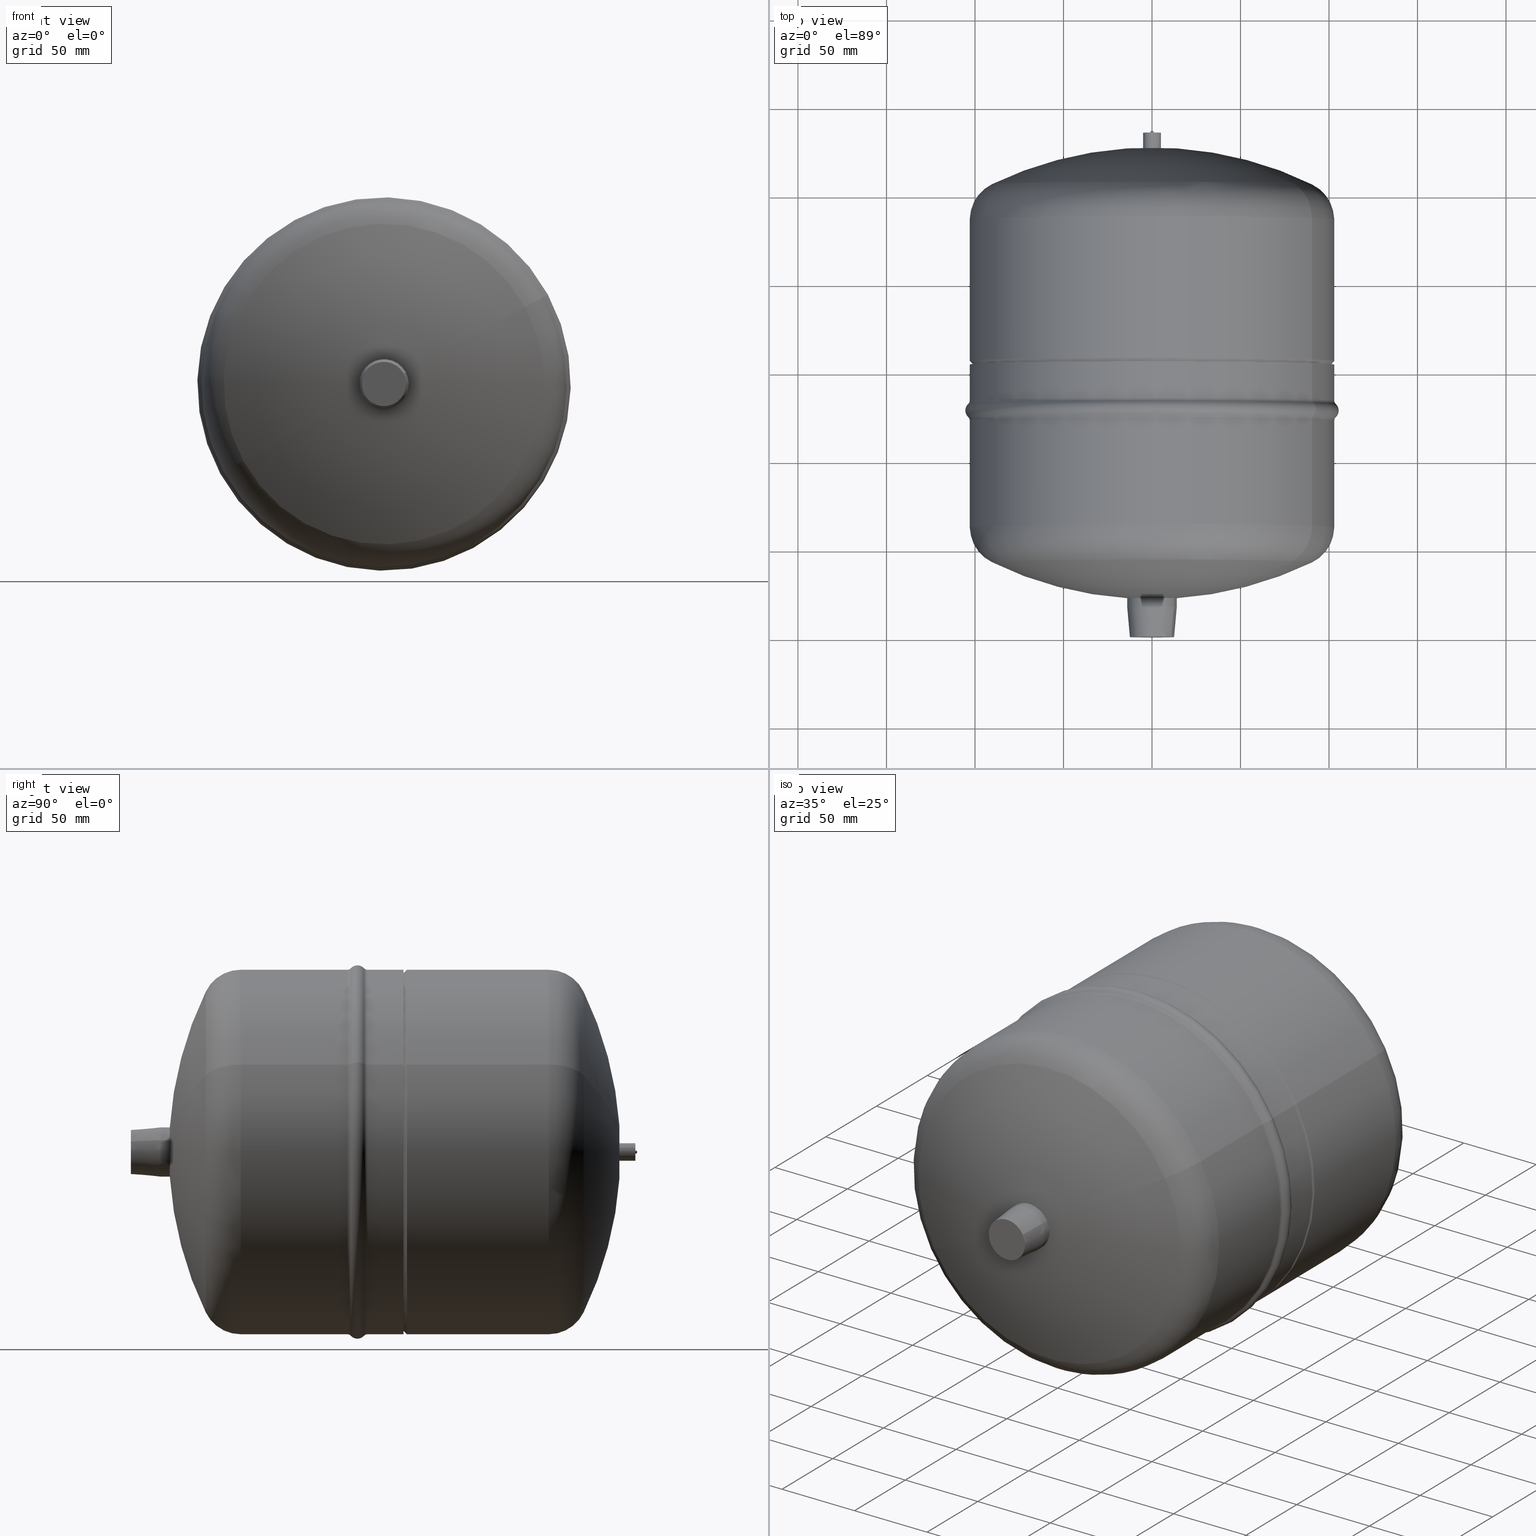
[diagram: canonical four-view strip — front | top / right | iso, engineering-drawing reading convention]
A machine part, canonical four-view strip (front | top / right | iso — engineering-drawing reading convention). The complete STEP part file that produces these views, byte-faithful:
ISO-10303-21;
HEADER;
FILE_DESCRIPTION(('CATIA V5 STEP Exchange'),'2;1');

FILE_NAME('C:\\Users\\Oberdoer.AD001\\Desktop\\reflex_NG8.stp','2012-08-09T12:25:11+00:00',('none'),('none'),'CATIA Version 5 Release 18 SP 5 (IN-10)','CATIA V5 STEP AP214','none');

FILE_SCHEMA(('AUTOMOTIVE_DESIGN { 1 0 10303 214 1 1 1 1 }'));

ENDSEC;
/* file written by CATIA V5R18 */
DATA;
#5=PRODUCT('reflex_NG8','','',(#2)) ;
#2=PRODUCT_CONTEXT(' ',#1,'mechanical') ;
#1=APPLICATION_CONTEXT('automotive design') ;
#10=PRODUCT_DEFINITION(' ',' ',#6,#3) ;
#3=PRODUCT_DEFINITION_CONTEXT('part definition',#1,' ') ;
#11=PRODUCT_DEFINITION_SHAPE(' ',' ',#10) ;
#763=MECHANICAL_DESIGN_GEOMETRIC_PRESENTATION_REPRESENTATION(' ',(#30),#17) ;
#20=SHAPE_REPRESENTATION(' ',(#19),#17) ;
#19=AXIS2_PLACEMENT_3D(' ',#18,$,$) ;
#35=AXIS2_PLACEMENT_3D('Cone Axis2P3D',#32,#33,#34) ;
#39=AXIS2_PLACEMENT_3D('Circle Axis2P3D',#37,#38,$) ;
#55=AXIS2_PLACEMENT_3D('Circle Axis2P3D',#53,#54,$) ;
#74=AXIS2_PLACEMENT_3D('Circle Axis2P3D',#72,#73,$) ;
#79=AXIS2_PLACEMENT_3D('Circle Axis2P3D',#77,#78,$) ;
#92=AXIS2_PLACEMENT_3D('Cylinder Axis2P3D',#89,#90,#91) ;
#103=AXIS2_PLACEMENT_3D('Circle Axis2P3D',#101,#102,$) ;
#122=AXIS2_PLACEMENT_3D('Circle Axis2P3D',#120,#121,$) ;
#135=AXIS2_PLACEMENT_3D('Sphere Axis2P3D',#132,#133,#134) ;
#139=AXIS2_PLACEMENT_3D('Circle Axis2P3D',#137,#138,$) ;
#146=AXIS2_PLACEMENT_3D('Circle Axis2P3D',#144,#145,$) ;
#153=AXIS2_PLACEMENT_3D('Circle Axis2P3D',#151,#152,$) ;
#165=AXIS2_PLACEMENT_3D('Circle Axis2P3D',#163,#164,$) ;
#178=AXIS2_PLACEMENT_3D('Torus Axis2P3D',#175,#176,#177) ;
#182=AXIS2_PLACEMENT_3D('Circle Axis2P3D',#180,#181,$) ;
#189=AXIS2_PLACEMENT_3D('Circle Axis2P3D',#187,#188,$) ;
#196=AXIS2_PLACEMENT_3D('Circle Axis2P3D',#194,#195,$) ;
#208=AXIS2_PLACEMENT_3D('Circle Axis2P3D',#206,#207,$) ;
#221=AXIS2_PLACEMENT_3D('Cylinder Axis2P3D',#218,#219,#220) ;
#232=AXIS2_PLACEMENT_3D('Circle Axis2P3D',#230,#231,$) ;
#251=AXIS2_PLACEMENT_3D('Circle Axis2P3D',#249,#250,$) ;
#264=AXIS2_PLACEMENT_3D('Torus Axis2P3D',#261,#262,#263) ;
#268=AXIS2_PLACEMENT_3D('Circle Axis2P3D',#266,#267,$) ;
#275=AXIS2_PLACEMENT_3D('Circle Axis2P3D',#273,#274,$) ;
#282=AXIS2_PLACEMENT_3D('Circle Axis2P3D',#280,#281,$) ;
#294=AXIS2_PLACEMENT_3D('Circle Axis2P3D',#292,#293,$) ;
#307=AXIS2_PLACEMENT_3D('Torus Axis2P3D',#304,#305,#306) ;
#311=AXIS2_PLACEMENT_3D('Circle Axis2P3D',#309,#310,$) ;
#318=AXIS2_PLACEMENT_3D('Circle Axis2P3D',#316,#317,$) ;
#325=AXIS2_PLACEMENT_3D('Circle Axis2P3D',#323,#324,$) ;
#337=AXIS2_PLACEMENT_3D('Circle Axis2P3D',#335,#336,$) ;
#350=AXIS2_PLACEMENT_3D('Torus Axis2P3D',#347,#348,#349) ;
#354=AXIS2_PLACEMENT_3D('Circle Axis2P3D',#352,#353,$) ;
#361=AXIS2_PLACEMENT_3D('Circle Axis2P3D',#359,#360,$) ;
#368=AXIS2_PLACEMENT_3D('Circle Axis2P3D',#366,#367,$) ;
#380=AXIS2_PLACEMENT_3D('Circle Axis2P3D',#378,#379,$) ;
#399=AXIS2_PLACEMENT_3D('Circle Axis2P3D',#397,#398,$) ;
#418=AXIS2_PLACEMENT_3D('Circle Axis2P3D',#416,#417,$) ;
#431=AXIS2_PLACEMENT_3D('Cone Axis2P3D',#428,#429,#430) ;
#435=AXIS2_PLACEMENT_3D('Circle Axis2P3D',#433,#434,$) ;
#451=AXIS2_PLACEMENT_3D('Circle Axis2P3D',#449,#450,$) ;
#470=AXIS2_PLACEMENT_3D('Circle Axis2P3D',#468,#469,$) ;
#475=AXIS2_PLACEMENT_3D('Circle Axis2P3D',#473,#474,$) ;
#494=AXIS2_PLACEMENT_3D('Circle Axis2P3D',#492,#493,$) ;
#513=AXIS2_PLACEMENT_3D('Circle Axis2P3D',#511,#512,$) ;
#526=AXIS2_PLACEMENT_3D('Torus Axis2P3D',#523,#524,#525) ;
#530=AXIS2_PLACEMENT_3D('Circle Axis2P3D',#528,#529,$) ;
#537=AXIS2_PLACEMENT_3D('Circle Axis2P3D',#535,#536,$) ;
#544=AXIS2_PLACEMENT_3D('Circle Axis2P3D',#542,#543,$) ;
#556=AXIS2_PLACEMENT_3D('Circle Axis2P3D',#554,#555,$) ;
#569=AXIS2_PLACEMENT_3D('Sphere Axis2P3D',#566,#567,#568) ;
#573=AXIS2_PLACEMENT_3D('Circle Axis2P3D',#571,#572,$) ;
#580=AXIS2_PLACEMENT_3D('Circle Axis2P3D',#578,#579,$) ;
#587=AXIS2_PLACEMENT_3D('Circle Axis2P3D',#585,#586,$) ;
#599=AXIS2_PLACEMENT_3D('Circle Axis2P3D',#597,#598,$) ;
#612=AXIS2_PLACEMENT_3D('Cylinder Axis2P3D',#609,#610,#611) ;
#616=AXIS2_PLACEMENT_3D('Circle Axis2P3D',#614,#615,$) ;
#632=AXIS2_PLACEMENT_3D('Circle Axis2P3D',#630,#631,$) ;
#651=AXIS2_PLACEMENT_3D('Circle Axis2P3D',#649,#650,$) ;
#656=AXIS2_PLACEMENT_3D('Circle Axis2P3D',#654,#655,$) ;
#669=AXIS2_PLACEMENT_3D('Sphere Axis2P3D',#666,#667,#668) ;
#673=AXIS2_PLACEMENT_3D('Circle Axis2P3D',#671,#672,$) ;
#682=AXIS2_PLACEMENT_3D('Circle Axis2P3D',#680,#681,$) ;
#689=AXIS2_PLACEMENT_3D('Circle Axis2P3D',#687,#688,$) ;
#700=AXIS2_PLACEMENT_3D('Circle Axis2P3D',#698,#699,$) ;
#712=AXIS2_PLACEMENT_3D('Plane Axis2P3D',#709,#710,#711) ;
#722=AXIS2_PLACEMENT_3D('Plane Axis2P3D',#719,#720,#721) ;
#736=AXIS2_PLACEMENT_3D('Plane Axis2P3D',#733,#734,#735) ;
#750=AXIS2_PLACEMENT_3D('Plane Axis2P3D',#747,#748,#749) ;
#18=CARTESIAN_POINT(' ',(0.,0.,0.)) ;
#32=CARTESIAN_POINT('Axis2P3D Location',(0.,0.,0.)) ;
#37=CARTESIAN_POINT('Axis2P3D Location',(0.,0.,0.)) ;
#41=CARTESIAN_POINT('Vertex',(10.9697820236,0.,5.99281923255)) ;
#43=CARTESIAN_POINT('Vertex',(-10.9697820236,0.,-5.99281923255)) ;
#46=CARTESIAN_POINT('Line Origine',(11.627968945,8.5,6.35238838651)) ;
#50=CARTESIAN_POINT('Vertex',(12.2861558665,17.,6.71195754046)) ;
#53=CARTESIAN_POINT('Axis2P3D Location',(0.,17.,0.)) ;
#57=CARTESIAN_POINT('Vertex',(-12.2861558665,17.,-6.71195754046)) ;
#60=CARTESIAN_POINT('Line Origine',(-11.627968945,8.5,-6.35238838651)) ;
#72=CARTESIAN_POINT('Axis2P3D Location',(0.,0.,0.)) ;
#77=CARTESIAN_POINT('Axis2P3D Location',(0.,17.,0.)) ;
#89=CARTESIAN_POINT('Axis2P3D Location',(0.,143.,0.)) ;
#94=CARTESIAN_POINT('Line Origine',(12.2861558665,19.5,6.71195754046)) ;
#98=CARTESIAN_POINT('Vertex',(12.2861558665,22.,6.71195754046)) ;
#101=CARTESIAN_POINT('Axis2P3D Location',(0.,22.,0.)) ;
#105=CARTESIAN_POINT('Vertex',(-12.2861558665,22.,-6.71195754046)) ;
#108=CARTESIAN_POINT('Line Origine',(-12.2861558665,19.5,-6.71195754046)) ;
#120=CARTESIAN_POINT('Axis2P3D Location',(0.,22.,0.)) ;
#132=CARTESIAN_POINT('Axis2P3D Location',(-2.84217094304E-014,229.528311322,0.)) ;
#137=CARTESIAN_POINT('Axis2P3D Location',(-2.84217094304E-014,229.528311322,0.)) ;
#141=CARTESIAN_POINT('Vertex',(79.4919946383,42.2874324459,43.4266745936)) ;
#144=CARTESIAN_POINT('Axis2P3D Location',(-2.84217094304E-014,42.2874324459,0.)) ;
#148=CARTESIAN_POINT('Vertex',(-79.4919946383,42.2874324459,-43.4266745936)) ;
#151=CARTESIAN_POINT('Axis2P3D Location',(-2.84217094304E-014,229.528311322,0.)) ;
#163=CARTESIAN_POINT('Axis2P3D Location',(-2.84217094304E-014,42.2874324459,0.)) ;
#175=CARTESIAN_POINT('Axis2P3D Location',(0.,62.0917561731,0.)) ;
#180=CARTESIAN_POINT('Axis2P3D Location',(71.0841875131,62.0917561731,38.8334686269)) ;
#184=CARTESIAN_POINT('Vertex',(90.3910038747,62.0917561731,49.3808304762)) ;
#187=CARTESIAN_POINT('Axis2P3D Location',(0.,62.0917561731,0.)) ;
#191=CARTESIAN_POINT('Vertex',(-90.3910038747,62.0917561731,-49.3808304762)) ;
#194=CARTESIAN_POINT('Axis2P3D Location',(-71.0841875131,62.0917561731,-38.8334686269)) ;
#206=CARTESIAN_POINT('Axis2P3D Location',(0.,62.0917561731,0.)) ;
#218=CARTESIAN_POINT('Axis2P3D Location',(0.,143.,0.)) ;
#223=CARTESIAN_POINT('Line Origine',(90.3910038747,149.034940875,49.3808304762)) ;
#227=CARTESIAN_POINT('Vertex',(90.3910038747,122.409830056,49.3808304762)) ;
#230=CARTESIAN_POINT('Axis2P3D Location',(0.,122.409830056,0.)) ;
#234=CARTESIAN_POINT('Vertex',(-90.3910038747,122.409830056,-49.3808304762)) ;
#237=CARTESIAN_POINT('Line Origine',(-90.3910038747,149.034940875,-49.3808304762)) ;
#249=CARTESIAN_POINT('Axis2P3D Location',(0.,122.409830056,0.)) ;
#261=CARTESIAN_POINT('Axis2P3D Location',(0.,122.409830056,0.)) ;
#266=CARTESIAN_POINT('Axis2P3D Location',(92.5849602794,122.409830056,50.5793943227)) ;
#270=CARTESIAN_POINT('Vertex',(91.1223226763,124.273220038,49.7803517584)) ;
#273=CARTESIAN_POINT('Axis2P3D Location',(0.,124.273220038,0.)) ;
#277=CARTESIAN_POINT('Vertex',(-91.1223226763,124.273220038,-49.7803517584)) ;
#280=CARTESIAN_POINT('Axis2P3D Location',(-92.5849602794,122.409830056,-50.5793943227)) ;
#292=CARTESIAN_POINT('Axis2P3D Location',(0.,124.273220038,0.)) ;
#304=CARTESIAN_POINT('Axis2P3D Location',(0.,128.,0.)) ;
#309=CARTESIAN_POINT('Axis2P3D Location',(88.19704747,128.,48.1822666297)) ;
#313=CARTESIAN_POINT('Vertex',(91.1223226763,131.726779962,49.7803517584)) ;
#316=CARTESIAN_POINT('Axis2P3D Location',(0.,131.726779962,0.)) ;
#320=CARTESIAN_POINT('Vertex',(-91.1223226763,131.726779962,-49.7803517584)) ;
#323=CARTESIAN_POINT('Axis2P3D Location',(-88.19704747,128.,-48.1822666297)) ;
#335=CARTESIAN_POINT('Axis2P3D Location',(0.,131.726779962,0.)) ;
#347=CARTESIAN_POINT('Axis2P3D Location',(0.,133.590169944,0.)) ;
#352=CARTESIAN_POINT('Axis2P3D Location',(92.5849602794,133.590169944,50.5793943227)) ;
#356=CARTESIAN_POINT('Vertex',(90.3910038747,133.590169944,49.3808304762)) ;
#359=CARTESIAN_POINT('Axis2P3D Location',(0.,133.590169944,0.)) ;
#363=CARTESIAN_POINT('Vertex',(-90.3910038747,133.590169944,-49.3808304762)) ;
#366=CARTESIAN_POINT('Axis2P3D Location',(-92.5849602794,133.590169944,-50.5793943227)) ;
#378=CARTESIAN_POINT('Axis2P3D Location',(0.,133.590169944,0.)) ;
#390=CARTESIAN_POINT('Line Origine',(90.3910038747,149.034940875,49.3808304762)) ;
#394=CARTESIAN_POINT('Vertex',(90.3910038747,154.,49.3808304762)) ;
#397=CARTESIAN_POINT('Axis2P3D Location',(0.,154.,0.)) ;
#401=CARTESIAN_POINT('Vertex',(-90.3910038747,154.,-49.3808304762)) ;
#404=CARTESIAN_POINT('Line Origine',(-90.3910038747,149.034940875,-49.3808304762)) ;
#416=CARTESIAN_POINT('Axis2P3D Location',(0.,154.,0.)) ;
#428=CARTESIAN_POINT('Axis2P3D Location',(0.,154.,0.)) ;
#433=CARTESIAN_POINT('Axis2P3D Location',(0.,154.,0.)) ;
#437=CARTESIAN_POINT('Vertex',(88.6358387509,154.,48.421979399)) ;
#439=CARTESIAN_POINT('Vertex',(-88.6358387509,154.,-48.421979399)) ;
#442=CARTESIAN_POINT('Line Origine',(89.5134213128,155.,48.9014049376)) ;
#446=CARTESIAN_POINT('Vertex',(90.3910038747,156.,49.3808304762)) ;
#449=CARTESIAN_POINT('Axis2P3D Location',(0.,156.,0.)) ;
#453=CARTESIAN_POINT('Vertex',(-90.3910038747,156.,-49.3808304762)) ;
#456=CARTESIAN_POINT('Line Origine',(-89.5134213128,155.,-48.9014049376)) ;
#468=CARTESIAN_POINT('Axis2P3D Location',(0.,154.,0.)) ;
#473=CARTESIAN_POINT('Axis2P3D Location',(0.,156.,0.)) ;
#485=CARTESIAN_POINT('Line Origine',(90.3910038747,149.034940875,49.3808304762)) ;
#489=CARTESIAN_POINT('Vertex',(90.3910038747,235.978125578,49.3808304762)) ;
#492=CARTESIAN_POINT('Axis2P3D Location',(0.,235.978125578,0.)) ;
#496=CARTESIAN_POINT('Vertex',(-90.3910038747,235.978125578,-49.3808304762)) ;
#499=CARTESIAN_POINT('Line Origine',(-90.3910038747,149.034940875,-49.3808304762)) ;
#511=CARTESIAN_POINT('Axis2P3D Location',(0.,235.978125578,0.)) ;
#523=CARTESIAN_POINT('Axis2P3D Location',(0.,235.978125578,0.)) ;
#528=CARTESIAN_POINT('Axis2P3D Location',(71.0841875131,235.978125578,38.8334686269)) ;
#532=CARTESIAN_POINT('Vertex',(79.4919946383,255.782449305,43.4266745936)) ;
#535=CARTESIAN_POINT('Axis2P3D Location',(0.,255.782449305,0.)) ;
#539=CARTESIAN_POINT('Vertex',(-79.4919946383,255.782449305,-43.4266745936)) ;
#542=CARTESIAN_POINT('Axis2P3D Location',(-71.0841875131,235.978125578,-38.8334686269)) ;
#554=CARTESIAN_POINT('Axis2P3D Location',(0.,255.782449305,0.)) ;
#566=CARTESIAN_POINT('Axis2P3D Location',(-7.1054273576E-015,68.5415704292,0.)) ;
#571=CARTESIAN_POINT('Axis2P3D Location',(-7.1054273576E-015,68.5415704292,0.)) ;
#575=CARTESIAN_POINT('Vertex',(13.1637384284,276.,7.19138307906)) ;
#578=CARTESIAN_POINT('Axis2P3D Location',(-7.1054273576E-015,276.,0.)) ;
#582=CARTESIAN_POINT('Vertex',(-13.1637384284,276.,-7.19138307906)) ;
#585=CARTESIAN_POINT('Axis2P3D Location',(-7.1054273576E-015,68.5415704292,0.)) ;
#597=CARTESIAN_POINT('Axis2P3D Location',(-7.1054273576E-015,276.,0.)) ;
#609=CARTESIAN_POINT('Axis2P3D Location',(0.,143.,0.)) ;
#614=CARTESIAN_POINT('Axis2P3D Location',(0.,276.,0.)) ;
#618=CARTESIAN_POINT('Vertex',(4.38791280945,276.,2.39712769302)) ;
#620=CARTESIAN_POINT('Vertex',(-4.38791280945,276.,-2.39712769302)) ;
#623=CARTESIAN_POINT('Line Origine',(4.38791280945,280.5,2.39712769302)) ;
#627=CARTESIAN_POINT('Vertex',(4.38791280945,285.,2.39712769302)) ;
#630=CARTESIAN_POINT('Axis2P3D Location',(0.,285.,0.)) ;
#634=CARTESIAN_POINT('Vertex',(-4.38791280945,285.,-2.39712769302)) ;
#637=CARTESIAN_POINT('Line Origine',(-4.38791280945,280.5,-2.39712769302)) ;
#649=CARTESIAN_POINT('Axis2P3D Location',(0.,276.,0.)) ;
#654=CARTESIAN_POINT('Axis2P3D Location',(0.,285.,0.)) ;
#666=CARTESIAN_POINT('Axis2P3D Location',(-3.49024337757E-014,285.,0.)) ;
#671=CARTESIAN_POINT('Axis2P3D Location',(-3.49024337757E-014,285.,0.)) ;
#675=CARTESIAN_POINT('Vertex',(0.87758256189,285.,0.479425538604)) ;
#677=CARTESIAN_POINT('Vertex',(-0.87758256189,285.,-0.479425538604)) ;
#680=CARTESIAN_POINT('Axis2P3D Location',(-3.49024337757E-014,285.,0.)) ;
#684=CARTESIAN_POINT('Vertex',(-3.48486973419E-014,286.,2.93563475641E-017)) ;
#687=CARTESIAN_POINT('Axis2P3D Location',(-3.49024337757E-014,285.,0.)) ;
#698=CARTESIAN_POINT('Axis2P3D Location',(-3.49024337757E-014,285.,0.)) ;
#709=CARTESIAN_POINT('Axis2P3D Location',(12.5,0.,0.)) ;
#719=CARTESIAN_POINT('Axis2P3D Location',(103.,154.,0.)) ;
#733=CARTESIAN_POINT('Axis2P3D Location',(15.,276.,0.)) ;
#747=CARTESIAN_POINT('Axis2P3D Location',(5.00000000001,285.,0.)) ;
#33=DIRECTION('Axis2P3D Direction',(-0.,1.,-0.)) ;
#34=DIRECTION('Axis2P3D XDirection',(0.87758256189,0.,0.479425538604)) ;
#38=DIRECTION('Axis2P3D Direction',(0.,1.,-0.)) ;
#47=DIRECTION('Vector Direction',(0.0771340752142,0.996129850025,0.0421385373413)) ;
#54=DIRECTION('Axis2P3D Direction',(0.,1.,-0.)) ;
#61=DIRECTION('Vector Direction',(-0.0771340752142,0.996129850025,-0.0421385373413)) ;
#73=DIRECTION('Axis2P3D Direction',(0.,1.,-0.)) ;
#78=DIRECTION('Axis2P3D Direction',(0.,1.,-0.)) ;
#90=DIRECTION('Axis2P3D Direction',(0.,-1.,0.)) ;
#91=DIRECTION('Axis2P3D XDirection',(0.87758256189,0.,0.479425538604)) ;
#95=DIRECTION('Vector Direction',(0.,-1.,0.)) ;
#102=DIRECTION('Axis2P3D Direction',(0.,-1.,0.)) ;
#109=DIRECTION('Vector Direction',(0.,-1.,0.)) ;
#121=DIRECTION('Axis2P3D Direction',(0.,-1.,0.)) ;
#133=DIRECTION('Axis2P3D Direction',(0.,-1.,0.)) ;
#134=DIRECTION('Axis2P3D XDirection',(0.87758256189,0.,0.479425538604)) ;
#138=DIRECTION('Axis2P3D Direction',(0.479425538604,0.,-0.87758256189)) ;
#145=DIRECTION('Axis2P3D Direction',(0.,-1.,0.)) ;
#152=DIRECTION('Axis2P3D Direction',(-0.479425538604,0.,0.87758256189)) ;
#164=DIRECTION('Axis2P3D Direction',(0.,-1.,0.)) ;
#176=DIRECTION('Axis2P3D Direction',(0.,-1.,0.)) ;
#177=DIRECTION('Axis2P3D XDirection',(0.87758256189,0.,0.479425538604)) ;
#181=DIRECTION('Axis2P3D Direction',(0.479425538604,0.,-0.87758256189)) ;
#188=DIRECTION('Axis2P3D Direction',(0.,-1.,0.)) ;
#195=DIRECTION('Axis2P3D Direction',(-0.479425538604,0.,0.87758256189)) ;
#207=DIRECTION('Axis2P3D Direction',(0.,-1.,0.)) ;
#219=DIRECTION('Axis2P3D Direction',(0.,-1.,0.)) ;
#220=DIRECTION('Axis2P3D XDirection',(0.87758256189,0.,0.479425538604)) ;
#224=DIRECTION('Vector Direction',(0.,-1.,0.)) ;
#231=DIRECTION('Axis2P3D Direction',(0.,-1.,0.)) ;
#238=DIRECTION('Vector Direction',(0.,-1.,0.)) ;
#250=DIRECTION('Axis2P3D Direction',(0.,-1.,0.)) ;
#262=DIRECTION('Axis2P3D Direction',(0.,-1.,0.)) ;
#263=DIRECTION('Axis2P3D XDirection',(0.87758256189,0.,0.479425538604)) ;
#267=DIRECTION('Axis2P3D Direction',(0.479425538604,0.,-0.87758256189)) ;
#274=DIRECTION('Axis2P3D Direction',(0.,-1.,0.)) ;
#281=DIRECTION('Axis2P3D Direction',(-0.479425538604,0.,0.87758256189)) ;
#293=DIRECTION('Axis2P3D Direction',(0.,-1.,0.)) ;
#305=DIRECTION('Axis2P3D Direction',(0.,-1.,0.)) ;
#306=DIRECTION('Axis2P3D XDirection',(0.87758256189,0.,0.479425538604)) ;
#310=DIRECTION('Axis2P3D Direction',(0.479425538604,0.,-0.87758256189)) ;
#317=DIRECTION('Axis2P3D Direction',(0.,-1.,0.)) ;
#324=DIRECTION('Axis2P3D Direction',(-0.479425538604,0.,0.87758256189)) ;
#336=DIRECTION('Axis2P3D Direction',(0.,-1.,0.)) ;
#348=DIRECTION('Axis2P3D Direction',(0.,-1.,0.)) ;
#349=DIRECTION('Axis2P3D XDirection',(0.87758256189,0.,0.479425538604)) ;
#353=DIRECTION('Axis2P3D Direction',(0.479425538604,0.,-0.87758256189)) ;
#360=DIRECTION('Axis2P3D Direction',(0.,-1.,0.)) ;
#367=DIRECTION('Axis2P3D Direction',(-0.479425538604,0.,0.87758256189)) ;
#379=DIRECTION('Axis2P3D Direction',(0.,-1.,0.)) ;
#391=DIRECTION('Vector Direction',(0.,-1.,0.)) ;
#398=DIRECTION('Axis2P3D Direction',(0.,-1.,0.)) ;
#405=DIRECTION('Vector Direction',(0.,-1.,0.)) ;
#417=DIRECTION('Axis2P3D Direction',(0.,-1.,0.)) ;
#429=DIRECTION('Axis2P3D Direction',(-0.,1.,-0.)) ;
#430=DIRECTION('Axis2P3D XDirection',(0.87758256189,0.,0.479425538604)) ;
#434=DIRECTION('Axis2P3D Direction',(0.,1.,-0.)) ;
#443=DIRECTION('Vector Direction',(0.620544580564,0.707106781187,0.339005049421)) ;
#450=DIRECTION('Axis2P3D Direction',(0.,1.,-0.)) ;
#457=DIRECTION('Vector Direction',(-0.620544580564,0.707106781187,-0.339005049421)) ;
#469=DIRECTION('Axis2P3D Direction',(0.,1.,-0.)) ;
#474=DIRECTION('Axis2P3D Direction',(0.,1.,-0.)) ;
#486=DIRECTION('Vector Direction',(0.,-1.,0.)) ;
#493=DIRECTION('Axis2P3D Direction',(0.,-1.,0.)) ;
#500=DIRECTION('Vector Direction',(0.,-1.,0.)) ;
#512=DIRECTION('Axis2P3D Direction',(0.,-1.,0.)) ;
#524=DIRECTION('Axis2P3D Direction',(0.,-1.,0.)) ;
#525=DIRECTION('Axis2P3D XDirection',(0.87758256189,0.,0.479425538604)) ;
#529=DIRECTION('Axis2P3D Direction',(0.479425538604,0.,-0.87758256189)) ;
#536=DIRECTION('Axis2P3D Direction',(0.,-1.,0.)) ;
#543=DIRECTION('Axis2P3D Direction',(-0.479425538604,0.,0.87758256189)) ;
#555=DIRECTION('Axis2P3D Direction',(0.,-1.,0.)) ;
#567=DIRECTION('Axis2P3D Direction',(0.,-1.,0.)) ;
#568=DIRECTION('Axis2P3D XDirection',(0.87758256189,0.,0.479425538604)) ;
#572=DIRECTION('Axis2P3D Direction',(0.479425538604,0.,-0.87758256189)) ;
#579=DIRECTION('Axis2P3D Direction',(0.,-1.,0.)) ;
#586=DIRECTION('Axis2P3D Direction',(-0.479425538604,0.,0.87758256189)) ;
#598=DIRECTION('Axis2P3D Direction',(0.,-1.,0.)) ;
#610=DIRECTION('Axis2P3D Direction',(0.,-1.,0.)) ;
#611=DIRECTION('Axis2P3D XDirection',(0.87758256189,0.,0.479425538604)) ;
#615=DIRECTION('Axis2P3D Direction',(0.,-1.,0.)) ;
#624=DIRECTION('Vector Direction',(0.,-1.,0.)) ;
#631=DIRECTION('Axis2P3D Direction',(0.,-1.,0.)) ;
#638=DIRECTION('Vector Direction',(0.,-1.,0.)) ;
#650=DIRECTION('Axis2P3D Direction',(0.,-1.,0.)) ;
#655=DIRECTION('Axis2P3D Direction',(0.,-1.,0.)) ;
#667=DIRECTION('Axis2P3D Direction',(0.,-1.,0.)) ;
#668=DIRECTION('Axis2P3D XDirection',(0.87758256189,0.,0.479425538604)) ;
#672=DIRECTION('Axis2P3D Direction',(0.,-1.,0.)) ;
#681=DIRECTION('Axis2P3D Direction',(0.479425538604,0.,-0.87758256189)) ;
#688=DIRECTION('Axis2P3D Direction',(-0.479425538604,0.,0.87758256189)) ;
#699=DIRECTION('Axis2P3D Direction',(0.,-1.,0.)) ;
#710=DIRECTION('Axis2P3D Direction',(0.,-1.,0.)) ;
#711=DIRECTION('Axis2P3D XDirection',(1.,0.,0.)) ;
#720=DIRECTION('Axis2P3D Direction',(0.,-1.,0.)) ;
#721=DIRECTION('Axis2P3D XDirection',(1.,0.,0.)) ;
#734=DIRECTION('Axis2P3D Direction',(0.,-1.,0.)) ;
#735=DIRECTION('Axis2P3D XDirection',(1.,0.,0.)) ;
#748=DIRECTION('Axis2P3D Direction',(0.,-1.,0.)) ;
#749=DIRECTION('Axis2P3D XDirection',(1.,0.,0.)) ;
#8=PRODUCT_RELATED_PRODUCT_CATEGORY('part',$,(#5)) ;
#7=PRODUCT_CATEGORY('part','specification') ;
#30=STYLED_ITEM(' ',(#29),#22) ;
#29=PRESENTATION_STYLE_ASSIGNMENT((#28)) ;
#28=SURFACE_STYLE_USAGE(.BOTH.,#27) ;
#27=SURFACE_SIDE_STYLE(' ',(#26)) ;
#26=SURFACE_STYLE_FILL_AREA(#25) ;
#25=FILL_AREA_STYLE(' ',(#24)) ;
#24=FILL_AREA_STYLE_COLOUR(' ',#23) ;
#48=VECTOR('Line Direction',#47,1.) ;
#62=VECTOR('Line Direction',#61,1.) ;
#96=VECTOR('Line Direction',#95,1.) ;
#110=VECTOR('Line Direction',#109,1.) ;
#225=VECTOR('Line Direction',#224,1.) ;
#239=VECTOR('Line Direction',#238,1.) ;
#392=VECTOR('Line Direction',#391,1.) ;
#406=VECTOR('Line Direction',#405,1.) ;
#444=VECTOR('Line Direction',#443,1.) ;
#458=VECTOR('Line Direction',#457,1.) ;
#487=VECTOR('Line Direction',#486,1.) ;
#501=VECTOR('Line Direction',#500,1.) ;
#625=VECTOR('Line Direction',#624,1.) ;
#639=VECTOR('Line Direction',#638,1.) ;
#16=UNCERTAINTY_MEASURE_WITH_UNIT(LENGTH_MEASURE(0.005),#12,'distance_accuracy_value','CONFUSED CURVE UNCERTAINTY') ;
#762=SHAPE_REPRESENTATION_RELATIONSHIP(' ',' ',#20,#761) ;
#66=ORIENTED_EDGE('',*,*,#45,.F.) ;
#67=ORIENTED_EDGE('',*,*,#52,.T.) ;
#68=ORIENTED_EDGE('',*,*,#59,.T.) ;
#69=ORIENTED_EDGE('',*,*,#64,.F.) ;
#83=ORIENTED_EDGE('',*,*,#76,.F.) ;
#84=ORIENTED_EDGE('',*,*,#64,.T.) ;
#85=ORIENTED_EDGE('',*,*,#81,.T.) ;
#86=ORIENTED_EDGE('',*,*,#52,.F.) ;
#114=ORIENTED_EDGE('',*,*,#59,.F.) ;
#115=ORIENTED_EDGE('',*,*,#100,.T.) ;
#116=ORIENTED_EDGE('',*,*,#107,.T.) ;
#117=ORIENTED_EDGE('',*,*,#112,.F.) ;
#126=ORIENTED_EDGE('',*,*,#81,.F.) ;
#127=ORIENTED_EDGE('',*,*,#112,.T.) ;
#128=ORIENTED_EDGE('',*,*,#124,.T.) ;
#129=ORIENTED_EDGE('',*,*,#100,.F.) ;
#157=ORIENTED_EDGE('',*,*,#107,.F.) ;
#158=ORIENTED_EDGE('',*,*,#143,.T.) ;
#159=ORIENTED_EDGE('',*,*,#150,.T.) ;
#160=ORIENTED_EDGE('',*,*,#155,.F.) ;
#169=ORIENTED_EDGE('',*,*,#124,.F.) ;
#170=ORIENTED_EDGE('',*,*,#155,.T.) ;
#171=ORIENTED_EDGE('',*,*,#167,.T.) ;
#172=ORIENTED_EDGE('',*,*,#143,.F.) ;
#200=ORIENTED_EDGE('',*,*,#150,.F.) ;
#201=ORIENTED_EDGE('',*,*,#186,.T.) ;
#202=ORIENTED_EDGE('',*,*,#193,.T.) ;
#203=ORIENTED_EDGE('',*,*,#198,.F.) ;
#212=ORIENTED_EDGE('',*,*,#167,.F.) ;
#213=ORIENTED_EDGE('',*,*,#198,.T.) ;
#214=ORIENTED_EDGE('',*,*,#210,.T.) ;
#215=ORIENTED_EDGE('',*,*,#186,.F.) ;
#243=ORIENTED_EDGE('',*,*,#193,.F.) ;
#244=ORIENTED_EDGE('',*,*,#229,.T.) ;
#245=ORIENTED_EDGE('',*,*,#236,.T.) ;
#246=ORIENTED_EDGE('',*,*,#241,.F.) ;
#255=ORIENTED_EDGE('',*,*,#210,.F.) ;
#256=ORIENTED_EDGE('',*,*,#241,.T.) ;
#257=ORIENTED_EDGE('',*,*,#253,.T.) ;
#258=ORIENTED_EDGE('',*,*,#229,.F.) ;
#286=ORIENTED_EDGE('',*,*,#236,.F.) ;
#287=ORIENTED_EDGE('',*,*,#272,.T.) ;
#288=ORIENTED_EDGE('',*,*,#279,.T.) ;
#289=ORIENTED_EDGE('',*,*,#284,.F.) ;
#298=ORIENTED_EDGE('',*,*,#253,.F.) ;
#299=ORIENTED_EDGE('',*,*,#284,.T.) ;
#300=ORIENTED_EDGE('',*,*,#296,.T.) ;
#301=ORIENTED_EDGE('',*,*,#272,.F.) ;
#329=ORIENTED_EDGE('',*,*,#279,.F.) ;
#330=ORIENTED_EDGE('',*,*,#315,.T.) ;
#331=ORIENTED_EDGE('',*,*,#322,.T.) ;
#332=ORIENTED_EDGE('',*,*,#327,.F.) ;
#341=ORIENTED_EDGE('',*,*,#296,.F.) ;
#342=ORIENTED_EDGE('',*,*,#327,.T.) ;
#343=ORIENTED_EDGE('',*,*,#339,.T.) ;
#344=ORIENTED_EDGE('',*,*,#315,.F.) ;
#372=ORIENTED_EDGE('',*,*,#322,.F.) ;
#373=ORIENTED_EDGE('',*,*,#358,.T.) ;
#374=ORIENTED_EDGE('',*,*,#365,.T.) ;
#375=ORIENTED_EDGE('',*,*,#370,.F.) ;
#384=ORIENTED_EDGE('',*,*,#339,.F.) ;
#385=ORIENTED_EDGE('',*,*,#370,.T.) ;
#386=ORIENTED_EDGE('',*,*,#382,.T.) ;
#387=ORIENTED_EDGE('',*,*,#358,.F.) ;
#410=ORIENTED_EDGE('',*,*,#365,.F.) ;
#411=ORIENTED_EDGE('',*,*,#396,.T.) ;
#412=ORIENTED_EDGE('',*,*,#403,.T.) ;
#413=ORIENTED_EDGE('',*,*,#408,.F.) ;
#422=ORIENTED_EDGE('',*,*,#382,.F.) ;
#423=ORIENTED_EDGE('',*,*,#408,.T.) ;
#424=ORIENTED_EDGE('',*,*,#420,.T.) ;
#425=ORIENTED_EDGE('',*,*,#396,.F.) ;
#462=ORIENTED_EDGE('',*,*,#441,.F.) ;
#463=ORIENTED_EDGE('',*,*,#448,.T.) ;
#464=ORIENTED_EDGE('',*,*,#455,.T.) ;
#465=ORIENTED_EDGE('',*,*,#460,.F.) ;
#479=ORIENTED_EDGE('',*,*,#472,.F.) ;
#480=ORIENTED_EDGE('',*,*,#460,.T.) ;
#481=ORIENTED_EDGE('',*,*,#477,.T.) ;
#482=ORIENTED_EDGE('',*,*,#448,.F.) ;
#505=ORIENTED_EDGE('',*,*,#455,.F.) ;
#506=ORIENTED_EDGE('',*,*,#491,.T.) ;
#507=ORIENTED_EDGE('',*,*,#498,.T.) ;
#508=ORIENTED_EDGE('',*,*,#503,.F.) ;
#517=ORIENTED_EDGE('',*,*,#477,.F.) ;
#518=ORIENTED_EDGE('',*,*,#503,.T.) ;
#519=ORIENTED_EDGE('',*,*,#515,.T.) ;
#520=ORIENTED_EDGE('',*,*,#491,.F.) ;
#548=ORIENTED_EDGE('',*,*,#498,.F.) ;
#549=ORIENTED_EDGE('',*,*,#534,.T.) ;
#550=ORIENTED_EDGE('',*,*,#541,.T.) ;
#551=ORIENTED_EDGE('',*,*,#546,.F.) ;
#560=ORIENTED_EDGE('',*,*,#515,.F.) ;
#561=ORIENTED_EDGE('',*,*,#546,.T.) ;
#562=ORIENTED_EDGE('',*,*,#558,.T.) ;
#563=ORIENTED_EDGE('',*,*,#534,.F.) ;
#591=ORIENTED_EDGE('',*,*,#541,.F.) ;
#592=ORIENTED_EDGE('',*,*,#577,.T.) ;
#593=ORIENTED_EDGE('',*,*,#584,.T.) ;
#594=ORIENTED_EDGE('',*,*,#589,.F.) ;
#603=ORIENTED_EDGE('',*,*,#558,.F.) ;
#604=ORIENTED_EDGE('',*,*,#589,.T.) ;
#605=ORIENTED_EDGE('',*,*,#601,.T.) ;
#606=ORIENTED_EDGE('',*,*,#577,.F.) ;
#643=ORIENTED_EDGE('',*,*,#622,.F.) ;
#644=ORIENTED_EDGE('',*,*,#629,.T.) ;
#645=ORIENTED_EDGE('',*,*,#636,.T.) ;
#646=ORIENTED_EDGE('',*,*,#641,.F.) ;
#660=ORIENTED_EDGE('',*,*,#653,.F.) ;
#661=ORIENTED_EDGE('',*,*,#641,.T.) ;
#662=ORIENTED_EDGE('',*,*,#658,.T.) ;
#663=ORIENTED_EDGE('',*,*,#629,.F.) ;
#693=ORIENTED_EDGE('',*,*,#679,.F.) ;
#694=ORIENTED_EDGE('',*,*,#686,.T.) ;
#695=ORIENTED_EDGE('',*,*,#691,.F.) ;
#704=ORIENTED_EDGE('',*,*,#702,.F.) ;
#705=ORIENTED_EDGE('',*,*,#691,.T.) ;
#706=ORIENTED_EDGE('',*,*,#686,.F.) ;
#715=ORIENTED_EDGE('',*,*,#45,.T.) ;
#716=ORIENTED_EDGE('',*,*,#76,.T.) ;
#725=ORIENTED_EDGE('',*,*,#403,.F.) ;
#726=ORIENTED_EDGE('',*,*,#420,.F.) ;
#729=ORIENTED_EDGE('',*,*,#472,.T.) ;
#730=ORIENTED_EDGE('',*,*,#441,.T.) ;
#739=ORIENTED_EDGE('',*,*,#584,.F.) ;
#740=ORIENTED_EDGE('',*,*,#601,.F.) ;
#743=ORIENTED_EDGE('',*,*,#653,.T.) ;
#744=ORIENTED_EDGE('',*,*,#622,.T.) ;
#753=ORIENTED_EDGE('',*,*,#636,.F.) ;
#754=ORIENTED_EDGE('',*,*,#658,.F.) ;
#757=ORIENTED_EDGE('',*,*,#702,.T.) ;
#758=ORIENTED_EDGE('',*,*,#679,.T.) ;
#731=FACE_BOUND('',#728,.T.) ;
#745=FACE_BOUND('',#742,.T.) ;
#759=FACE_BOUND('',#756,.T.) ;
#31=CLOSED_SHELL('Closed Shell',(#71,#88,#119,#131,#162,#174,#205,#217,#248,#260,#291,#303,#334,#346,#377,#389,#415,#427,#467,#484,#510,#522,#553,#565,#596,#608,#648,#665,#697,#708,#718,#732,#746,#760)) ;
#761=ADVANCED_BREP_SHAPE_REPRESENTATION('NONE',(#22),#17) ;
#71=ADVANCED_FACE('Hauptk\X2\00F6\X0\rper',(#70),#36,.T.) ;
#88=ADVANCED_FACE('Hauptk\X2\00F6\X0\rper',(#87),#36,.T.) ;
#119=ADVANCED_FACE('Hauptk\X2\00F6\X0\rper',(#118),#93,.T.) ;
#131=ADVANCED_FACE('Hauptk\X2\00F6\X0\rper',(#130),#93,.T.) ;
#162=ADVANCED_FACE('Hauptk\X2\00F6\X0\rper',(#161),#136,.T.) ;
#174=ADVANCED_FACE('Hauptk\X2\00F6\X0\rper',(#173),#136,.T.) ;
#205=ADVANCED_FACE('Hauptk\X2\00F6\X0\rper',(#204),#179,.T.) ;
#217=ADVANCED_FACE('Hauptk\X2\00F6\X0\rper',(#216),#179,.T.) ;
#248=ADVANCED_FACE('Hauptk\X2\00F6\X0\rper',(#247),#222,.T.) ;
#260=ADVANCED_FACE('Hauptk\X2\00F6\X0\rper',(#259),#222,.T.) ;
#291=ADVANCED_FACE('Hauptk\X2\00F6\X0\rper',(#290),#265,.F.) ;
#303=ADVANCED_FACE('Hauptk\X2\00F6\X0\rper',(#302),#265,.F.) ;
#334=ADVANCED_FACE('Hauptk\X2\00F6\X0\rper',(#333),#308,.T.) ;
#346=ADVANCED_FACE('Hauptk\X2\00F6\X0\rper',(#345),#308,.T.) ;
#377=ADVANCED_FACE('Hauptk\X2\00F6\X0\rper',(#376),#351,.F.) ;
#389=ADVANCED_FACE('Hauptk\X2\00F6\X0\rper',(#388),#351,.F.) ;
#415=ADVANCED_FACE('Hauptk\X2\00F6\X0\rper',(#414),#222,.T.) ;
#427=ADVANCED_FACE('Hauptk\X2\00F6\X0\rper',(#426),#222,.T.) ;
#467=ADVANCED_FACE('Hauptk\X2\00F6\X0\rper',(#466),#432,.T.) ;
#484=ADVANCED_FACE('Hauptk\X2\00F6\X0\rper',(#483),#432,.T.) ;
#510=ADVANCED_FACE('Hauptk\X2\00F6\X0\rper',(#509),#222,.T.) ;
#522=ADVANCED_FACE('Hauptk\X2\00F6\X0\rper',(#521),#222,.T.) ;
#553=ADVANCED_FACE('Hauptk\X2\00F6\X0\rper',(#552),#527,.T.) ;
#565=ADVANCED_FACE('Hauptk\X2\00F6\X0\rper',(#564),#527,.T.) ;
#596=ADVANCED_FACE('Hauptk\X2\00F6\X0\rper',(#595),#570,.T.) ;
#608=ADVANCED_FACE('Hauptk\X2\00F6\X0\rper',(#607),#570,.T.) ;
#648=ADVANCED_FACE('Hauptk\X2\00F6\X0\rper',(#647),#613,.T.) ;
#665=ADVANCED_FACE('Hauptk\X2\00F6\X0\rper',(#664),#613,.T.) ;
#697=ADVANCED_FACE('Hauptk\X2\00F6\X0\rper',(#696),#670,.T.) ;
#708=ADVANCED_FACE('Hauptk\X2\00F6\X0\rper',(#707),#670,.T.) ;
#718=ADVANCED_FACE('Hauptk\X2\00F6\X0\rper',(#717),#713,.T.) ;
#732=ADVANCED_FACE('Hauptk\X2\00F6\X0\rper',(#727,#731),#723,.F.) ;
#746=ADVANCED_FACE('Hauptk\X2\00F6\X0\rper',(#741,#745),#737,.F.) ;
#760=ADVANCED_FACE('Hauptk\X2\00F6\X0\rper',(#755,#759),#751,.F.) ;
#4=APPLICATION_PROTOCOL_DEFINITION('international standard','automotive_design',2001,#1) ;
#22=MANIFOLD_SOLID_BREP('Hauptk\X2\00F6\X0\rper',#31) ;
#40=CIRCLE('generated circle',#39,12.5) ;
#56=CIRCLE('generated circle',#55,14.) ;
#75=CIRCLE('generated circle',#74,12.5) ;
#80=CIRCLE('generated circle',#79,14.) ;
#104=CIRCLE('generated circle',#103,14.) ;
#123=CIRCLE('generated circle',#122,14.) ;
#140=CIRCLE('generated circle',#139,208.) ;
#147=CIRCLE('generated circle',#146,90.5806451613) ;
#154=CIRCLE('generated circle',#153,208.) ;
#166=CIRCLE('generated circle',#165,90.5806451613) ;
#183=CIRCLE('generated circle',#182,22.) ;
#190=CIRCLE('generated circle',#189,103.) ;
#197=CIRCLE('generated circle',#196,22.) ;
#209=CIRCLE('generated circle',#208,103.) ;
#233=CIRCLE('generated circle',#232,103.) ;
#252=CIRCLE('generated circle',#251,103.) ;
#269=CIRCLE('generated circle',#268,2.5) ;
#276=CIRCLE('generated circle',#275,103.833333333) ;
#283=CIRCLE('generated circle',#282,2.5) ;
#295=CIRCLE('generated circle',#294,103.833333333) ;
#312=CIRCLE('generated circle',#311,5.) ;
#319=CIRCLE('generated circle',#318,103.833333333) ;
#326=CIRCLE('generated circle',#325,5.) ;
#338=CIRCLE('generated circle',#337,103.833333333) ;
#355=CIRCLE('generated circle',#354,2.5) ;
#362=CIRCLE('generated circle',#361,103.) ;
#369=CIRCLE('generated circle',#368,2.5) ;
#381=CIRCLE('generated circle',#380,103.) ;
#400=CIRCLE('generated circle',#399,103.) ;
#419=CIRCLE('generated circle',#418,103.) ;
#436=CIRCLE('generated circle',#435,101.) ;
#452=CIRCLE('generated circle',#451,103.) ;
#471=CIRCLE('generated circle',#470,101.) ;
#476=CIRCLE('generated circle',#475,103.) ;
#495=CIRCLE('generated circle',#494,103.) ;
#514=CIRCLE('generated circle',#513,103.) ;
#531=CIRCLE('generated circle',#530,22.) ;
#538=CIRCLE('generated circle',#537,90.5806451613) ;
#545=CIRCLE('generated circle',#544,22.) ;
#557=CIRCLE('generated circle',#556,90.5806451613) ;
#574=CIRCLE('generated circle',#573,208.) ;
#581=CIRCLE('generated circle',#580,15.) ;
#588=CIRCLE('generated circle',#587,208.) ;
#600=CIRCLE('generated circle',#599,15.) ;
#617=CIRCLE('generated circle',#616,5.) ;
#633=CIRCLE('generated circle',#632,5.) ;
#652=CIRCLE('generated circle',#651,5.) ;
#657=CIRCLE('generated circle',#656,5.) ;
#674=CIRCLE('generated circle',#673,1.) ;
#683=CIRCLE('generated circle',#682,1.) ;
#690=CIRCLE('generated circle',#689,1.) ;
#701=CIRCLE('generated circle',#700,1.) ;
#23=COLOUR_RGB('Colour',0.823529411765,0.823529411765,1.) ;
#36=CONICAL_SURFACE('Cone',#35,12.5,0.0880073735277) ;
#432=CONICAL_SURFACE('Cone',#431,101.,0.785398163397) ;
#93=CYLINDRICAL_SURFACE('generated cylinder',#92,14.) ;
#222=CYLINDRICAL_SURFACE('generated cylinder',#221,103.) ;
#613=CYLINDRICAL_SURFACE('generated cylinder',#612,5.) ;
#179=TOROIDAL_SURFACE('homeo Torus',#178,81.,22.) ;
#265=TOROIDAL_SURFACE('homeo Torus',#264,105.5,2.5) ;
#308=TOROIDAL_SURFACE('homeo Torus',#307,100.5,5.) ;
#351=TOROIDAL_SURFACE('homeo Torus',#350,105.5,2.5) ;
#527=TOROIDAL_SURFACE('homeo Torus',#526,81.,22.) ;
#45=EDGE_CURVE('',#42,#44,#40,.F.) ;
#52=EDGE_CURVE('',#42,#51,#49,.T.) ;
#59=EDGE_CURVE('',#51,#58,#56,.F.) ;
#64=EDGE_CURVE('',#44,#58,#63,.T.) ;
#76=EDGE_CURVE('',#44,#42,#75,.F.) ;
#81=EDGE_CURVE('',#58,#51,#80,.F.) ;
#100=EDGE_CURVE('',#51,#99,#97,.F.) ;
#107=EDGE_CURVE('',#99,#106,#104,.T.) ;
#112=EDGE_CURVE('',#58,#106,#111,.F.) ;
#124=EDGE_CURVE('',#106,#99,#123,.T.) ;
#143=EDGE_CURVE('',#99,#142,#140,.F.) ;
#150=EDGE_CURVE('',#142,#149,#147,.T.) ;
#155=EDGE_CURVE('',#106,#149,#154,.F.) ;
#167=EDGE_CURVE('',#149,#142,#166,.T.) ;
#186=EDGE_CURVE('',#142,#185,#183,.F.) ;
#193=EDGE_CURVE('',#185,#192,#190,.T.) ;
#198=EDGE_CURVE('',#149,#192,#197,.F.) ;
#210=EDGE_CURVE('',#192,#185,#209,.T.) ;
#229=EDGE_CURVE('',#185,#228,#226,.F.) ;
#236=EDGE_CURVE('',#228,#235,#233,.T.) ;
#241=EDGE_CURVE('',#192,#235,#240,.F.) ;
#253=EDGE_CURVE('',#235,#228,#252,.T.) ;
#272=EDGE_CURVE('',#228,#271,#269,.T.) ;
#279=EDGE_CURVE('',#271,#278,#276,.T.) ;
#284=EDGE_CURVE('',#235,#278,#283,.T.) ;
#296=EDGE_CURVE('',#278,#271,#295,.T.) ;
#315=EDGE_CURVE('',#271,#314,#312,.F.) ;
#322=EDGE_CURVE('',#314,#321,#319,.T.) ;
#327=EDGE_CURVE('',#278,#321,#326,.F.) ;
#339=EDGE_CURVE('',#321,#314,#338,.T.) ;
#358=EDGE_CURVE('',#314,#357,#355,.T.) ;
#365=EDGE_CURVE('',#357,#364,#362,.T.) ;
#370=EDGE_CURVE('',#321,#364,#369,.T.) ;
#382=EDGE_CURVE('',#364,#357,#381,.T.) ;
#396=EDGE_CURVE('',#357,#395,#393,.F.) ;
#403=EDGE_CURVE('',#395,#402,#400,.T.) ;
#408=EDGE_CURVE('',#364,#402,#407,.F.) ;
#420=EDGE_CURVE('',#402,#395,#419,.T.) ;
#441=EDGE_CURVE('',#438,#440,#436,.F.) ;
#448=EDGE_CURVE('',#438,#447,#445,.T.) ;
#455=EDGE_CURVE('',#447,#454,#452,.F.) ;
#460=EDGE_CURVE('',#440,#454,#459,.T.) ;
#472=EDGE_CURVE('',#440,#438,#471,.F.) ;
#477=EDGE_CURVE('',#454,#447,#476,.F.) ;
#491=EDGE_CURVE('',#447,#490,#488,.F.) ;
#498=EDGE_CURVE('',#490,#497,#495,.T.) ;
#503=EDGE_CURVE('',#454,#497,#502,.F.) ;
#515=EDGE_CURVE('',#497,#490,#514,.T.) ;
#534=EDGE_CURVE('',#490,#533,#531,.F.) ;
#541=EDGE_CURVE('',#533,#540,#538,.T.) ;
#546=EDGE_CURVE('',#497,#540,#545,.F.) ;
#558=EDGE_CURVE('',#540,#533,#557,.T.) ;
#577=EDGE_CURVE('',#533,#576,#574,.F.) ;
#584=EDGE_CURVE('',#576,#583,#581,.T.) ;
#589=EDGE_CURVE('',#540,#583,#588,.F.) ;
#601=EDGE_CURVE('',#583,#576,#600,.T.) ;
#622=EDGE_CURVE('',#619,#621,#617,.T.) ;
#629=EDGE_CURVE('',#619,#628,#626,.F.) ;
#636=EDGE_CURVE('',#628,#635,#633,.T.) ;
#641=EDGE_CURVE('',#621,#635,#640,.F.) ;
#653=EDGE_CURVE('',#621,#619,#652,.T.) ;
#658=EDGE_CURVE('',#635,#628,#657,.T.) ;
#679=EDGE_CURVE('',#676,#678,#674,.T.) ;
#686=EDGE_CURVE('',#676,#685,#683,.F.) ;
#691=EDGE_CURVE('',#678,#685,#690,.F.) ;
#702=EDGE_CURVE('',#678,#676,#701,.T.) ;
#65=EDGE_LOOP('',(#66,#67,#68,#69)) ;
#82=EDGE_LOOP('',(#83,#84,#85,#86)) ;
#113=EDGE_LOOP('',(#114,#115,#116,#117)) ;
#125=EDGE_LOOP('',(#126,#127,#128,#129)) ;
#156=EDGE_LOOP('',(#157,#158,#159,#160)) ;
#168=EDGE_LOOP('',(#169,#170,#171,#172)) ;
#199=EDGE_LOOP('',(#200,#201,#202,#203)) ;
#211=EDGE_LOOP('',(#212,#213,#214,#215)) ;
#242=EDGE_LOOP('',(#243,#244,#245,#246)) ;
#254=EDGE_LOOP('',(#255,#256,#257,#258)) ;
#285=EDGE_LOOP('',(#286,#287,#288,#289)) ;
#297=EDGE_LOOP('',(#298,#299,#300,#301)) ;
#328=EDGE_LOOP('',(#329,#330,#331,#332)) ;
#340=EDGE_LOOP('',(#341,#342,#343,#344)) ;
#371=EDGE_LOOP('',(#372,#373,#374,#375)) ;
#383=EDGE_LOOP('',(#384,#385,#386,#387)) ;
#409=EDGE_LOOP('',(#410,#411,#412,#413)) ;
#421=EDGE_LOOP('',(#422,#423,#424,#425)) ;
#461=EDGE_LOOP('',(#462,#463,#464,#465)) ;
#478=EDGE_LOOP('',(#479,#480,#481,#482)) ;
#504=EDGE_LOOP('',(#505,#506,#507,#508)) ;
#516=EDGE_LOOP('',(#517,#518,#519,#520)) ;
#547=EDGE_LOOP('',(#548,#549,#550,#551)) ;
#559=EDGE_LOOP('',(#560,#561,#562,#563)) ;
#590=EDGE_LOOP('',(#591,#592,#593,#594)) ;
#602=EDGE_LOOP('',(#603,#604,#605,#606)) ;
#642=EDGE_LOOP('',(#643,#644,#645,#646)) ;
#659=EDGE_LOOP('',(#660,#661,#662,#663)) ;
#692=EDGE_LOOP('',(#693,#694,#695)) ;
#703=EDGE_LOOP('',(#704,#705,#706)) ;
#714=EDGE_LOOP('',(#715,#716)) ;
#724=EDGE_LOOP('',(#725,#726)) ;
#728=EDGE_LOOP('',(#729,#730)) ;
#738=EDGE_LOOP('',(#739,#740)) ;
#742=EDGE_LOOP('',(#743,#744)) ;
#752=EDGE_LOOP('',(#753,#754)) ;
#756=EDGE_LOOP('',(#757,#758)) ;
#70=FACE_OUTER_BOUND('',#65,.T.) ;
#87=FACE_OUTER_BOUND('',#82,.T.) ;
#118=FACE_OUTER_BOUND('',#113,.T.) ;
#130=FACE_OUTER_BOUND('',#125,.T.) ;
#161=FACE_OUTER_BOUND('',#156,.T.) ;
#173=FACE_OUTER_BOUND('',#168,.T.) ;
#204=FACE_OUTER_BOUND('',#199,.T.) ;
#216=FACE_OUTER_BOUND('',#211,.T.) ;
#247=FACE_OUTER_BOUND('',#242,.T.) ;
#259=FACE_OUTER_BOUND('',#254,.T.) ;
#290=FACE_OUTER_BOUND('',#285,.T.) ;
#302=FACE_OUTER_BOUND('',#297,.T.) ;
#333=FACE_OUTER_BOUND('',#328,.T.) ;
#345=FACE_OUTER_BOUND('',#340,.T.) ;
#376=FACE_OUTER_BOUND('',#371,.T.) ;
#388=FACE_OUTER_BOUND('',#383,.T.) ;
#414=FACE_OUTER_BOUND('',#409,.T.) ;
#426=FACE_OUTER_BOUND('',#421,.T.) ;
#466=FACE_OUTER_BOUND('',#461,.T.) ;
#483=FACE_OUTER_BOUND('',#478,.T.) ;
#509=FACE_OUTER_BOUND('',#504,.T.) ;
#521=FACE_OUTER_BOUND('',#516,.T.) ;
#552=FACE_OUTER_BOUND('',#547,.T.) ;
#564=FACE_OUTER_BOUND('',#559,.T.) ;
#595=FACE_OUTER_BOUND('',#590,.T.) ;
#607=FACE_OUTER_BOUND('',#602,.T.) ;
#647=FACE_OUTER_BOUND('',#642,.T.) ;
#664=FACE_OUTER_BOUND('',#659,.T.) ;
#696=FACE_OUTER_BOUND('',#692,.T.) ;
#707=FACE_OUTER_BOUND('',#703,.T.) ;
#717=FACE_OUTER_BOUND('',#714,.T.) ;
#727=FACE_OUTER_BOUND('',#724,.T.) ;
#741=FACE_OUTER_BOUND('',#738,.T.) ;
#755=FACE_OUTER_BOUND('',#752,.T.) ;
#49=LINE('Line',#46,#48) ;
#63=LINE('Line',#60,#62) ;
#97=LINE('Line',#94,#96) ;
#111=LINE('Line',#108,#110) ;
#226=LINE('Line',#223,#225) ;
#240=LINE('Line',#237,#239) ;
#393=LINE('Line',#390,#392) ;
#407=LINE('Line',#404,#406) ;
#445=LINE('Line',#442,#444) ;
#459=LINE('Line',#456,#458) ;
#488=LINE('Line',#485,#487) ;
#502=LINE('Line',#499,#501) ;
#626=LINE('Line',#623,#625) ;
#640=LINE('Line',#637,#639) ;
#713=PLANE('Plane',#712) ;
#723=PLANE('Plane',#722) ;
#737=PLANE('Plane',#736) ;
#751=PLANE('Plane',#750) ;
#14=PLANE_ANGLE_MEASURE_WITH_UNIT(PLANE_ANGLE_MEASURE(0.0174532925199),#13) ;
#9=PRODUCT_CATEGORY_RELATIONSHIP(' ',' ',#7,#8) ;
#6=PRODUCT_DEFINITION_FORMATION_WITH_SPECIFIED_SOURCE('',' ',#5,.NOT_KNOWN.) ;
#21=SHAPE_DEFINITION_REPRESENTATION(#11,#20) ;
#136=SPHERICAL_SURFACE('',#135,208.) ;
#570=SPHERICAL_SURFACE('',#569,208.) ;
#670=SPHERICAL_SURFACE('',#669,1.) ;
#42=VERTEX_POINT('',#41) ;
#44=VERTEX_POINT('',#43) ;
#51=VERTEX_POINT('',#50) ;
#58=VERTEX_POINT('',#57) ;
#99=VERTEX_POINT('',#98) ;
#106=VERTEX_POINT('',#105) ;
#142=VERTEX_POINT('',#141) ;
#149=VERTEX_POINT('',#148) ;
#185=VERTEX_POINT('',#184) ;
#192=VERTEX_POINT('',#191) ;
#228=VERTEX_POINT('',#227) ;
#235=VERTEX_POINT('',#234) ;
#271=VERTEX_POINT('',#270) ;
#278=VERTEX_POINT('',#277) ;
#314=VERTEX_POINT('',#313) ;
#321=VERTEX_POINT('',#320) ;
#357=VERTEX_POINT('',#356) ;
#364=VERTEX_POINT('',#363) ;
#395=VERTEX_POINT('',#394) ;
#402=VERTEX_POINT('',#401) ;
#438=VERTEX_POINT('',#437) ;
#440=VERTEX_POINT('',#439) ;
#447=VERTEX_POINT('',#446) ;
#454=VERTEX_POINT('',#453) ;
#490=VERTEX_POINT('',#489) ;
#497=VERTEX_POINT('',#496) ;
#533=VERTEX_POINT('',#532) ;
#540=VERTEX_POINT('',#539) ;
#576=VERTEX_POINT('',#575) ;
#583=VERTEX_POINT('',#582) ;
#619=VERTEX_POINT('',#618) ;
#621=VERTEX_POINT('',#620) ;
#628=VERTEX_POINT('',#627) ;
#635=VERTEX_POINT('',#634) ;
#676=VERTEX_POINT('',#675) ;
#678=VERTEX_POINT('',#677) ;
#685=VERTEX_POINT('',#684) ;
#12=(LENGTH_UNIT()NAMED_UNIT(*)SI_UNIT(.MILLI.,.METRE.)) ;
#13=(NAMED_UNIT(*)PLANE_ANGLE_UNIT()SI_UNIT($,.RADIAN.)) ;
#15=(NAMED_UNIT(*)SI_UNIT($,.STERADIAN.)SOLID_ANGLE_UNIT()) ;
#17=(GEOMETRIC_REPRESENTATION_CONTEXT(3)GLOBAL_UNCERTAINTY_ASSIGNED_CONTEXT((#16))GLOBAL_UNIT_ASSIGNED_CONTEXT((#12,#13,#15))REPRESENTATION_CONTEXT(' ',' ')) ;
ENDSEC;
END-ISO-10303-21;
